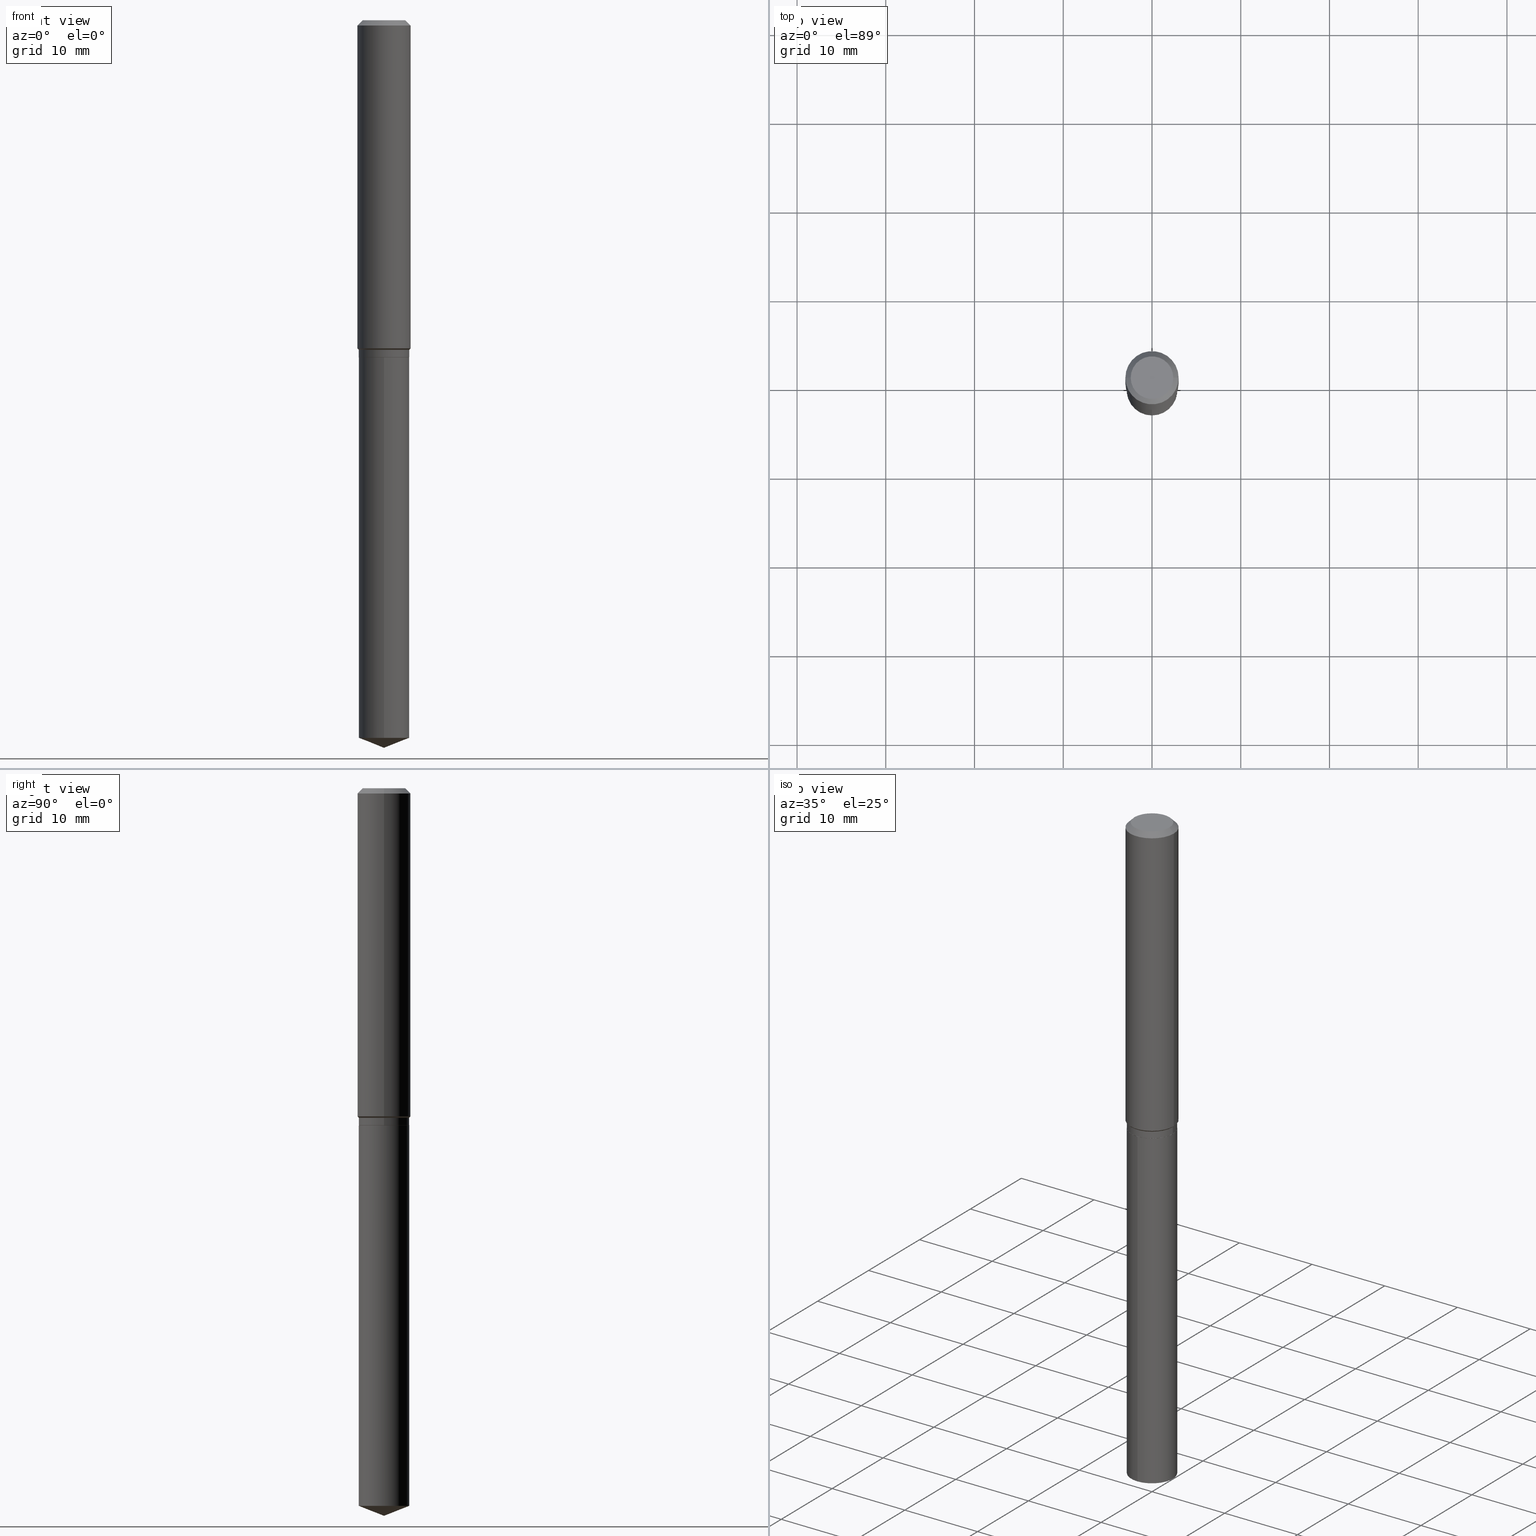
[diagram: canonical four-view strip — front | top / right | iso, engineering-drawing reading convention]
A machine part, canonical four-view strip (front | top / right | iso — engineering-drawing reading convention). The complete STEP part file that produces these views, byte-faithful:
ISO-10303-21;
HEADER;
FILE_DESCRIPTION (( 'STEP AP203' ),
    '1' );
FILE_NAME ('66530.STEP',
    '2024-04-25T00:23:13',
    ( '' ),
    ( '' ),
    'SwSTEP 2.0',
    'SolidWorks 2023',
    '' );
FILE_SCHEMA (( 'CONFIG_CONTROL_DESIGN' ));
ENDSEC;

DATA;
#1 = ORIENTED_EDGE ( 'NONE', *, *, #245, .T. ) ;
#2 = EDGE_CURVE ( 'NONE', #341, #427, #469, .T. ) ;
#3 = ORIENTED_EDGE ( 'NONE', *, *, #245, .F. ) ;
#4 = ORIENTED_EDGE ( 'NONE', *, *, #311, .F. ) ;
#5 = DIRECTION ( 'NONE',  ( -2.445468806185136597E-29, 3.491481338843145583E-15, 1.000000000000000000 ) ) ;
#6 = COORDINATED_UNIVERSAL_TIME_OFFSET ( 5, 0, .BEHIND. ) ;
#7 = CARTESIAN_POINT ( 'NONE',  ( 3.560847128686177889E-29, -5.083945977489504641E-15, -1.456100000000000172 ) ) ;
#8 = AXIS2_PLACEMENT_3D ( 'NONE', #474, #138, #289 ) ;
#9 = CONICAL_SURFACE ( 'NONE', #60, 0.1116999999999999937, 0.7853981633975507526 ) ;
#10 = DIRECTION ( 'NONE',  ( -2.445468806185136597E-29, 3.491481338843145583E-15, 1.000000000000000000 ) ) ;
#11 = VERTEX_POINT ( 'NONE', #355 ) ;
#12 = PERSON_AND_ORGANIZATION ( #20, #211 ) ;
#13 = EDGE_LOOP ( 'NONE', ( #270, #275, #236, #41 ) ) ;
#14 = DATE_TIME_ROLE ( 'creation_date' ) ;
#15 = VERTEX_POINT ( 'NONE', #21 ) ;
#16 = ORIENTED_EDGE ( 'NONE', *, *, #107, .T. ) ;
#17 = CLOSED_SHELL ( 'NONE', ( #329, #232, #120, #444, #420, #176, #447, #345, #227, #19, #364, #414 ) ) ;
#18 = AXIS2_PLACEMENT_3D ( 'NONE', #39, #37, #187 ) ;
#19 = ADVANCED_FACE ( 'NONE', ( #470 ), #398, .F. ) ;
#20 = PERSON ( 'UNSPECIFIED', 'UNSPECIFIED', 'UNSPECIFIED', ('UNSPECIFIED'), ('UNSPECIFIED'), ('UNSPECIFIED') ) ;
#21 = CARTESIAN_POINT ( 'NONE',  ( 0.1181000000000001632, -5.908633869724253693E-15, -1.456100000000000172 ) ) ;
#22 =( NAMED_UNIT ( * ) SI_UNIT ( $, .STERADIAN. ) SOLID_ANGLE_UNIT ( ) );
#23 = CARTESIAN_POINT ( 'NONE',  ( -0.1122000000000000081, -4.307316767865847002E-15, -1.462000000000000188 ) ) ;
#24 = CARTESIAN_POINT ( 'NONE',  ( 7.785841617379532030E-29, -1.111626107828459545E-14, -3.183803244636004059 ) ) ;
#25 = CIRCLE ( 'NONE', #387, 0.1116999999999999937 ) ;
#26 =( CONVERSION_BASED_UNIT ( 'INCH', #406 ) LENGTH_UNIT ( ) NAMED_UNIT ( #454 ) );
#27 = CIRCLE ( 'NONE', #476, 0.1180999999999999966 ) ;
#28 = EDGE_CURVE ( 'NONE', #155, #48, #42, .T. ) ;
#29 = LINE ( 'NONE', #417, #397 ) ;
#30 = APPLICATION_PROTOCOL_DEFINITION ( 'international standard', 'config_control_design', 1994, #68 ) ;
#31 = DIRECTION ( 'NONE',  ( 1.000000000000000000, -6.982962677686266711E-15, 4.876176775795935793E-29 ) ) ;
#32 = CARTESIAN_POINT ( 'NONE',  ( 5.776197320209327532E-31, -8.246878922347559293E-17, -0.02362000000000014088 ) ) ;
#33 = PERSON_AND_ORGANIZATION ( #20, #211 ) ;
#34 = EDGE_CURVE ( 'NONE', #252, #44, #487, .T. ) ;
#35 = AXIS2_PLACEMENT_3D ( 'NONE', #179, #336, #146 ) ;
#36 = CONICAL_SURFACE ( 'NONE', #150, 0.1122000000000000081, 0.7853981633974569387 ) ;
#37 = DIRECTION ( 'NONE',  ( -2.445439244954803263E-29, 3.491523672207503504E-15, 1.000000000000000000 ) ) ;
#38 = APPROVAL ( #240, 'UNSPECIFIED' ) ;
#39 = CARTESIAN_POINT ( 'NONE',  ( -8.838321353069555042E-28, 1.261909868020604563E-13, 36.14207874015747990 ) ) ;
#40 = EDGE_CURVE ( 'NONE', #11, #239, #284, .T. ) ;
#41 = ORIENTED_EDGE ( 'NONE', *, *, #117, .F. ) ;
#42 = CIRCLE ( 'NONE', #482, 0.09447999999999998066 ) ;
#43 = AXIS2_PLACEMENT_3D ( 'NONE', #57, #358, #466 ) ;
#44 = VERTEX_POINT ( 'NONE', #328 ) ;
#45 = ADVANCED_FACE ( 'NONE', ( #63 ), #251, .T. ) ;
#46 = DIRECTION ( 'NONE',  ( -2.445468806185136597E-29, 3.491481338843145583E-15, 1.000000000000000000 ) ) ;
#47 = ORIENTED_EDGE ( 'NONE', *, *, #369, .F. ) ;
#48 = VERTEX_POINT ( 'NONE', #56 ) ;
#49 = ORIENTED_EDGE ( 'NONE', *, *, #228, .T. ) ;
#50 = ADVANCED_FACE ( 'NONE', ( #132 ), #285, .T. ) ;
#51 = VERTEX_POINT ( 'NONE', #325 ) ;
#52 = CALENDAR_DATE ( 2024, 24, 4 ) ;
#53 = CARTESIAN_POINT ( 'NONE',  ( 0.000000000000000000, 0.000000000000000000, 0.000000000000000000 ) ) ;
#54 = VERTEX_POINT ( 'NONE', #250 ) ;
#55 = CARTESIAN_POINT ( 'NONE',  ( 3.657687693411109493E-29, -5.222208638507693246E-15, -1.495700000000000029 ) ) ;
#56 = CARTESIAN_POINT ( 'NONE',  ( 0.09447999999999998066, -7.704367267948738690E-16, -1.928573779296752193E-17 ) ) ;
#57 = CARTESIAN_POINT ( 'NONE',  ( 3.656464959008016692E-29, -5.220462897838271742E-15, -1.495200000000000307 ) ) ;
#58 = VECTOR ( 'NONE', #100, 39.37007874015748143 ) ;
#59 = EDGE_CURVE ( 'NONE', #128, #44, #395, .T. ) ;
#60 = AXIS2_PLACEMENT_3D ( 'NONE', #55, #461, #313 ) ;
#61 = DESIGN_CONTEXT ( 'detailed design', #68, 'design' ) ;
#62 = DIRECTION ( 'NONE',  ( -2.445439244954803263E-29, 3.491523672207503504E-15, 1.000000000000000000 ) ) ;
#63 = FACE_OUTER_BOUND ( 'NONE', #166, .T. ) ;
#64 = UNCERTAINTY_MEASURE_WITH_UNIT (LENGTH_MEASURE( 1.000000000000000082E-05 ), #26, 'distance_accuracy_value', 'NONE');
#65 = EDGE_LOOP ( 'NONE', ( #1, #84, #79, #316 ) ) ;
#66 = CARTESIAN_POINT ( 'NONE',  ( 5.776197320209327532E-31, -8.246878922347559293E-17, -0.02362000000000014088 ) ) ;
#67 = CYLINDRICAL_SURFACE ( 'NONE', #307, 0.1181000000000000799 ) ;
#68 = APPLICATION_CONTEXT ( 'configuration controlled 3d designs of mechanical parts and assemblies' ) ;
#69 = AXIS2_PLACEMENT_3D ( 'NONE', #437, #174, #473 ) ;
#70 = APPROVAL_PERSON_ORGANIZATION ( #446, #407, #73 ) ;
#71 = EDGE_CURVE ( 'NONE', #128, #113, #288, .T. ) ;
#72 = LINE ( 'NONE', #294, #98 ) ;
#73 = APPROVAL_ROLE ( '' ) ;
#74 = DIRECTION ( 'NONE',  ( 1.000000000000000000, -6.982962677686262766E-15, 0.000000000000000000 ) ) ;
#75 = DATE_AND_TIME ( #409, #274 ) ;
#76 = DIRECTION ( 'NONE',  ( -0.7071067811865459074, 2.468850131082240100E-15, -0.7071067811865491270 ) ) ;
#77 = CARTESIAN_POINT ( 'NONE',  ( 0.1122000000000000081, -7.834884124363992007E-16, 5.471070342443040245E-30 ) ) ;
#78 = ORIENTED_EDGE ( 'NONE', *, *, #489, .T. ) ;
#79 = ORIENTED_EDGE ( 'NONE', *, *, #159, .F. ) ;
#80 = AXIS2_PLACEMENT_3D ( 'NONE', #244, #206, #277 ) ;
#81 = VERTEX_POINT ( 'NONE', #213 ) ;
#82 = ORIENTED_EDGE ( 'NONE', *, *, #2, .F. ) ;
#83 = EDGE_CURVE ( 'NONE', #341, #164, #361, .T. ) ;
#84 = ORIENTED_EDGE ( 'NONE', *, *, #311, .T. ) ;
#85 = CALENDAR_DATE ( 2024, 24, 4 ) ;
#86 = ORIENTED_EDGE ( 'NONE', *, *, #484, .T. ) ;
#87 = CONICAL_SURFACE ( 'NONE', #18, 99.94676754583997536, 1.195550537616119513 ) ;
#88 = ORIENTED_EDGE ( 'NONE', *, *, #107, .F. ) ;
#89 = FACE_OUTER_BOUND ( 'NONE', #112, .T. ) ;
#90 = EDGE_CURVE ( 'NONE', #48, #155, #115, .T. ) ;
#91 = DIRECTION ( 'NONE',  ( -2.445439244954803263E-29, 3.491523672207503504E-15, 1.000000000000000000 ) ) ;
#92 = FACE_OUTER_BOUND ( 'NONE', #156, .T. ) ;
#93 = DIRECTION ( 'NONE',  ( 1.000000000000000000, -6.982962677686266711E-15, 0.000000000000000000 ) ) ;
#94 = EDGE_CURVE ( 'NONE', #15, #352, #177, .T. ) ;
#95 = DIRECTION ( 'NONE',  ( 1.000000000000000000, -6.982962677686266711E-15, 0.000000000000000000 ) ) ;
#96 = EDGE_LOOP ( 'NONE', ( #301, #86, #425, #118 ) ) ;
#97 = DIRECTION ( 'NONE',  ( -6.982962677686265133E-15, -1.000000000000000000, 2.434802133390608632E-15 ) ) ;
#98 = VECTOR ( 'NONE', #370, 39.37007874015748143 ) ;
#99 = AXIS2_PLACEMENT_3D ( 'NONE', #379, #46, #306 ) ;
#100 = DIRECTION ( 'NONE',  ( -2.445439244954803543E-29, 3.491523672207503899E-15, 1.000000000000000000 ) ) ;
#101 = CARTESIAN_POINT ( 'NONE',  ( 0.1181000000000000799, -8.246878922347486570E-16, 5.758764772215004644E-30 ) ) ;
#102 = LINE ( 'NONE', #268, #116 ) ;
#103 = DIRECTION ( 'NONE',  ( 1.000000000000000000, -6.982962677686266711E-15, 0.000000000000000000 ) ) ;
#104 = DIRECTION ( 'NONE',  ( -2.445439244954803543E-29, 3.491523672207503899E-15, 1.000000000000000000 ) ) ;
#105 = CARTESIAN_POINT ( 'NONE',  ( 0.1180999999999999966, -8.926936027602933910E-16, -0.02362000000000014088 ) ) ;
#106 = AXIS2_PLACEMENT_3D ( 'NONE', #147, #295, #368 ) ;
#107 = EDGE_CURVE ( 'NONE', #319, #113, #255, .T. ) ;
#108 = DIRECTION ( 'NONE',  ( -1.000000000000000000, 6.982962677686266711E-15, 0.000000000000000000 ) ) ;
#109 = DIRECTION ( 'NONE',  ( 6.982962677686265922E-15, 1.000000000000000000, -3.491523672207503899E-15 ) ) ;
#110 = CARTESIAN_POINT ( 'NONE',  ( 3.560847128686177889E-29, -5.083945977489504641E-15, -1.456100000000000172 ) ) ;
#111 = AXIS2_PLACEMENT_3D ( 'NONE', #410, #331, #108 ) ;
#112 = EDGE_LOOP ( 'NONE', ( #416, #463, #3, #382 ) ) ;
#113 = VERTEX_POINT ( 'NONE', #280 ) ;
#114 = CARTESIAN_POINT ( 'NONE',  ( 3.656464959008016692E-29, -5.220462897838271742E-15, -1.495200000000000307 ) ) ;
#115 = CIRCLE ( 'NONE', #8, 0.09447999999999998066 ) ;
#116 = VECTOR ( 'NONE', #104, 39.37007874015748143 ) ;
#117 = EDGE_CURVE ( 'NONE', #155, #54, #140, .T. ) ;
#118 = ORIENTED_EDGE ( 'NONE', *, *, #34, .F. ) ;
#119 = DATE_AND_TIME ( #161, #217 ) ;
#120 = ADVANCED_FACE ( 'NONE', ( #259 ), #67, .T. ) ;
#121 = ORIENTED_EDGE ( 'NONE', *, *, #135, .F. ) ;
#122 = SHAPE_DEFINITION_REPRESENTATION ( #172, #383 ) ;
#123 = EDGE_LOOP ( 'NONE', ( #173, #342 ) ) ;
#124 = DIRECTION ( 'NONE',  ( -2.445468806185136877E-29, 3.491481338843145188E-15, 1.000000000000000000 ) ) ;
#125 = EDGE_CURVE ( 'NONE', #44, #252, #338, .T. ) ;
#126 = DATE_AND_TIME ( #315, #199 ) ;
#127 = AXIS2_PLACEMENT_3D ( 'NONE', #32, #184, #335 ) ;
#128 = VERTEX_POINT ( 'NONE', #186 ) ;
#129 = CARTESIAN_POINT ( 'NONE',  ( 0.1122000000000000081, -5.888034129825078373E-15, -1.462000000000000188 ) ) ;
#130 = DIRECTION ( 'NONE',  ( -2.445439244954803263E-29, 3.491523672207503504E-15, 1.000000000000000000 ) ) ;
#131 = EDGE_CURVE ( 'NONE', #427, #341, #475, .T. ) ;
#132 = FACE_OUTER_BOUND ( 'NONE', #468, .T. ) ;
#133 = ORIENTED_EDGE ( 'NONE', *, *, #203, .T. ) ;
#134 = MANIFOLD_SOLID_BREP ( 'Body-Move/Copy2[1]', #272 ) ;
#135 = EDGE_CURVE ( 'NONE', #81, #51, #72, .T. ) ;
#136 = AXIS2_PLACEMENT_3D ( 'NONE', #221, #442, #31 ) ;
#137 = CONICAL_SURFACE ( 'NONE', #99, 0.1116999999999999937, 0.7853981633975507526 ) ;
#138 = DIRECTION ( 'NONE',  ( -2.445468806185136597E-29, 3.491481338843145583E-15, 1.000000000000000000 ) ) ;
#139 = PRODUCT_DEFINITION ( 'UNKNOWN', '', #318, #61 ) ;
#140 = LINE ( 'NONE', #141, #169 ) ;
#141 = CARTESIAN_POINT ( 'NONE',  ( -0.1180999999999999966, 7.422191030112725094E-16, -0.02362000000000014088 ) ) ;
#142 = EDGE_CURVE ( 'NONE', #48, #352, #292, .T. ) ;
#143 = AXIS2_PLACEMENT_3D ( 'NONE', #436, #91, #247 ) ;
#144 = CARTESIAN_POINT ( 'NONE',  ( -0.09447999999999998066, 7.009847083995354710E-16, -1.928573779297727792E-17 ) ) ;
#145 = CIRCLE ( 'NONE', #459, 0.1122000000000000081 ) ;
#146 = DIRECTION ( 'NONE',  ( 1.000000000000000000, -6.982962677686266711E-15, 0.000000000000000000 ) ) ;
#147 = CARTESIAN_POINT ( 'NONE',  ( 0.000000000000000000, 0.000000000000000000, 0.000000000000000000 ) ) ;
#148 = FACE_OUTER_BOUND ( 'NONE', #231, .T. ) ;
#149 = VECTOR ( 'NONE', #175, 39.37007874015748854 ) ;
#150 = AXIS2_PLACEMENT_3D ( 'NONE', #248, #393, #195 ) ;
#151 = DIRECTION ( 'NONE',  ( 1.000000000000000000, -6.982962677686262766E-15, 0.000000000000000000 ) ) ;
#152 = MANIFOLD_SOLID_BREP ( 'Body-Move/Copy2[2]', #17 ) ;
#153 = ORIENTED_EDGE ( 'NONE', *, *, #302, .F. ) ;
#154 = EDGE_LOOP ( 'NONE', ( #4, #193, #359, #47 ) ) ;
#155 = VERTEX_POINT ( 'NONE', #144 ) ;
#156 = EDGE_LOOP ( 'NONE', ( #197, #435, #189, #456 ) ) ;
#157 = DIRECTION ( 'NONE',  ( 1.000000000000000000, -6.982962677686266711E-15, 0.000000000000000000 ) ) ;
#158 = AXIS2_PLACEMENT_3D ( 'NONE', #264, #413, #262 ) ;
#159 = EDGE_CURVE ( 'NONE', #352, #54, #411, .T. ) ;
#160 = AXIS2_PLACEMENT_3D ( 'NONE', #209, #320, #344 ) ;
#161 = CALENDAR_DATE ( 2024, 24, 4 ) ;
#162 = ORIENTED_EDGE ( 'NONE', *, *, #40, .T. ) ;
#163 = APPROVAL_DATE_TIME ( #362, #354 ) ;
#164 = VERTEX_POINT ( 'NONE', #291 ) ;
#165 = FACE_OUTER_BOUND ( 'NONE', #385, .T. ) ;
#166 = EDGE_LOOP ( 'NONE', ( #88, #233, #308 ) ) ;
#167 = APPROVAL_ROLE ( '' ) ;
#168 = DIRECTION ( 'NONE',  ( 1.000000000000000000, -6.982962677686267499E-15, 4.875432709231658792E-29 ) ) ;
#169 = VECTOR ( 'NONE', #76, 39.37007874015748143 ) ;
#170 = CIRCLE ( 'NONE', #432, 0.1181000000000001632 ) ;
#171 = CARTESIAN_POINT ( 'NONE',  ( 3.657687693411109493E-29, -5.222208638507693246E-15, -1.495700000000000029 ) ) ;
#172 = PRODUCT_DEFINITION_SHAPE ( 'NONE', 'NONE',  #139 ) ;
#173 = ORIENTED_EDGE ( 'NONE', *, *, #28, .T. ) ;
#174 = DIRECTION ( 'NONE',  ( -2.445439244954803263E-29, 3.491523672207503504E-15, 1.000000000000000000 ) ) ;
#175 = DIRECTION ( 'NONE',  ( -0.7071067811865534569, 7.493145998870374671E-15, 0.7071067811865413555 ) ) ;
#176 = ADVANCED_FACE ( 'NONE', ( #148 ), #445, .T. ) ;
#177 = LINE ( 'NONE', #101, #396 ) ;
#178 = ADVANCED_FACE ( 'NONE', ( #256 ), #481, .F. ) ;
#179 = CARTESIAN_POINT ( 'NONE',  ( 3.575275394642669920E-29, -5.104545717388679172E-15, -1.462000000000000188 ) ) ;
#180 = LINE ( 'NONE', #403, #326 ) ;
#181 = CC_DESIGN_PERSON_AND_ORGANIZATION_ASSIGNMENT ( #12, #389, ( #226 ) ) ;
#182 = FACE_OUTER_BOUND ( 'NONE', #96, .T. ) ;
#183 = VECTOR ( 'NONE', #214, 39.37007874015748143 ) ;
#184 = DIRECTION ( 'NONE',  ( 2.445468806185136597E-29, -3.491481338843145583E-15, -1.000000000000000000 ) ) ;
#185 = CIRCLE ( 'NONE', #191, 0.1116999999999999937 ) ;
#186 = CARTESIAN_POINT ( 'NONE',  ( -7.834884124363210048E-16, -0.1122000000000110825, -3.183803244636003615 ) ) ;
#187 = DIRECTION ( 'NONE',  ( -6.982962677686265133E-15, -1.000000000000000000, 3.498627837350004222E-15 ) ) ;
#188 = CC_DESIGN_PERSON_AND_ORGANIZATION_ASSIGNMENT ( #219, #367, ( #201 ) ) ;
#189 = ORIENTED_EDGE ( 'NONE', *, *, #220, .T. ) ;
#190 = CIRCLE ( 'NONE', #43, 0.1122000000000000081 ) ;
#191 = AXIS2_PLACEMENT_3D ( 'NONE', #339, #10, #151 ) ;
#192 = EDGE_LOOP ( 'NONE', ( #153, #16, #418 ) ) ;
#193 = ORIENTED_EDGE ( 'NONE', *, *, #433, .T. ) ;
#194 = EDGE_LOOP ( 'NONE', ( #314, #304, #378, #241 ) ) ;
#195 = DIRECTION ( 'NONE',  ( 1.000000000000000000, -6.982962677686266711E-15, 0.000000000000000000 ) ) ;
#196 = APPROVAL_ROLE ( '' ) ;
#197 = ORIENTED_EDGE ( 'NONE', *, *, #83, .F. ) ;
#198 = EDGE_LOOP ( 'NONE', ( #388, #380 ) ) ;
#199 = LOCAL_TIME ( 20, 23, 13.00000000000000000, #312 ) ;
#200 = PERSON_AND_ORGANIZATION ( #20, #211 ) ;
#201 = PRODUCT ( '66530', '66530', '', ( #254 ) ) ;
#202 = PERSON_AND_ORGANIZATION_ROLE ( 'design_supplier' ) ;
#203 = EDGE_CURVE ( 'NONE', #239, #427, #366, .T. ) ;
#204 = DIRECTION ( 'NONE',  ( -2.445468806185136597E-29, 3.491481338843145583E-15, 1.000000000000000000 ) ) ;
#205 = CARTESIAN_POINT ( 'NONE',  ( 3.657687693411109493E-29, -5.222208638507693246E-15, -1.495700000000000029 ) ) ;
#206 = DIRECTION ( 'NONE',  ( -2.445468806185136597E-29, 3.491481338843145583E-15, 1.000000000000000000 ) ) ;
#207 = ORIENTED_EDGE ( 'NONE', *, *, #332, .F. ) ;
#208 = CARTESIAN_POINT ( 'NONE',  ( 4.716267017698007905E-46, -6.733579360998555036E-32, -1.928573779297252010E-17 ) ) ;
#209 = CARTESIAN_POINT ( 'NONE',  ( 7.785841617379532030E-29, -1.111626107828459545E-14, -3.183803244636004059 ) ) ;
#210 = APPLICATION_CONTEXT ( 'configuration controlled 3d designs of mechanical parts and assemblies' ) ;
#211 = ORGANIZATION ( 'UNSPECIFIED', 'UNSPECIFIED', '' ) ;
#212 = DIRECTION ( 'NONE',  ( 2.438088387897960049E-29, -3.491481338843145188E-15, -1.000000000000000000 ) ) ;
#213 = CARTESIAN_POINT ( 'NONE',  ( -0.1116999999999999937, -4.425883175489550774E-15, -1.495700000000000029 ) ) ;
#214 = DIRECTION ( 'NONE',  ( 6.611014441532066589E-15, 0.9304175679820272382, 0.3665012267242905297 ) ) ;
#215 =( LENGTH_UNIT ( ) NAMED_UNIT ( * ) SI_UNIT ( $, .METRE. ) );
#216 = AXIS2_PLACEMENT_3D ( 'NONE', #392, #212, #441 ) ;
#217 = LOCAL_TIME ( 20, 23, 13.00000000000000000, #6 ) ;
#218 = CARTESIAN_POINT ( 'NONE',  ( 0.000000000000000000, 0.000000000000000000, 0.000000000000000000 ) ) ;
#219 = PERSON_AND_ORGANIZATION ( #20, #211 ) ;
#220 = EDGE_CURVE ( 'NONE', #427, #15, #180, .T. ) ;
#221 = CARTESIAN_POINT ( 'NONE',  ( 0.000000000000000000, 0.000000000000000000, 0.000000000000000000 ) ) ;
#222 = COORDINATED_UNIVERSAL_TIME_OFFSET ( 5, 0, .BEHIND. ) ;
#223 = FACE_OUTER_BOUND ( 'NONE', #13, .T. ) ;
#224 = APPROVAL_DATE_TIME ( #75, #407 ) ;
#225 = DIRECTION ( 'NONE',  ( -2.445468806185136597E-29, 3.491481338843145583E-15, 1.000000000000000000 ) ) ;
#226 = SECURITY_CLASSIFICATION ( '', '', #249 ) ;
#227 = ADVANCED_FACE ( 'NONE', ( #485 ), #242, .T. ) ;
#228 = EDGE_CURVE ( 'NONE', #81, #11, #25, .T. ) ;
#229 = CARTESIAN_POINT ( 'NONE',  ( -0.1181000000000000799, 8.391509709326788873E-16, -5.809262341591047988E-30 ) ) ;
#230 = ORIENTED_EDGE ( 'NONE', *, *, #438, .T. ) ;
#231 = EDGE_LOOP ( 'NONE', ( #267, #230, #133, #82 ) ) ;
#232 = ADVANCED_FACE ( 'NONE', ( #223 ), #298, .T. ) ;
#233 = ORIENTED_EDGE ( 'NONE', *, *, #302, .T. ) ;
#234 = AXIS2_PLACEMENT_3D ( 'NONE', #53, #394, #428 ) ;
#235 = PRODUCT_RELATED_PRODUCT_CATEGORY ( 'detail', '', ( #201 ) ) ;
#236 = ORIENTED_EDGE ( 'NONE', *, *, #159, .T. ) ;
#237 = COORDINATED_UNIVERSAL_TIME_OFFSET ( 5, 0, .BEHIND. ) ;
#238 = CARTESIAN_POINT ( 'NONE',  ( -0.1122000000000000081, -4.365275358090643287E-15, -1.462000000000000188 ) ) ;
#239 = VERTEX_POINT ( 'NONE', #451 ) ;
#240 = APPROVAL_STATUS ( 'not_yet_approved' ) ;
#241 = ORIENTED_EDGE ( 'NONE', *, *, #369, .T. ) ;
#242 = CONICAL_SURFACE ( 'NONE', #111, 0.1180999999999999966, 0.7853981633974460586 ) ;
#243 = CARTESIAN_POINT ( 'NONE',  ( 3.575275394642669920E-29, -5.104545717388679172E-15, -1.462000000000000188 ) ) ;
#244 = CARTESIAN_POINT ( 'NONE',  ( 3.575275394642669920E-29, -5.104545717388679172E-15, -1.462000000000000188 ) ) ;
#245 = EDGE_CURVE ( 'NONE', #15, #164, #404, .T. ) ;
#246 = DIRECTION ( 'NONE',  ( 1.000000000000000000, -6.982962677686263555E-15, 0.000000000000000000 ) ) ;
#247 = DIRECTION ( 'NONE',  ( -6.982962677686265133E-15, -1.000000000000000000, 3.498627837350004222E-15 ) ) ;
#248 = CARTESIAN_POINT ( 'NONE',  ( 3.575275394642669920E-29, -5.104545717388679172E-15, -1.462000000000000188 ) ) ;
#249 = SECURITY_CLASSIFICATION_LEVEL ( 'unclassified' ) ;
#250 = CARTESIAN_POINT ( 'NONE',  ( -0.1180999999999999966, -1.744056412423810669E-15, -0.02362000000000014088 ) ) ;
#251 = CONICAL_SURFACE ( 'NONE', #143, 99.94676754583997536, 1.195550537616119513 ) ;
#252 = VERTEX_POINT ( 'NONE', #373 ) ;
#253 = APPROVAL_PERSON_ORGANIZATION ( #305, #354, #167 ) ;
#254 = MECHANICAL_CONTEXT ( 'NONE', #210, 'mechanical' ) ;
#255 = LINE ( 'NONE', #400, #183 ) ;
#256 = FACE_OUTER_BOUND ( 'NONE', #198, .T. ) ;
#257 = CARTESIAN_POINT ( 'NONE',  ( 3.657687693411109493E-29, -5.222208638507693246E-15, -1.495700000000000029 ) ) ;
#258 = VECTOR ( 'NONE', #422, 39.37007874015748143 ) ;
#259 = FACE_OUTER_BOUND ( 'NONE', #65, .T. ) ;
#260 = APPROVAL_STATUS ( 'not_yet_approved' ) ;
#261 = DIRECTION ( 'NONE',  ( 0.7071067811865534569, -2.468850131082320564E-15, 0.7071067811865413555 ) ) ;
#262 = DIRECTION ( 'NONE',  ( -6.982962677686265133E-15, -1.000000000000000000, 2.434802133390608632E-15 ) ) ;
#263 = VECTOR ( 'NONE', #293, 39.37007874015748143 ) ;
#264 = CARTESIAN_POINT ( 'NONE',  ( 3.657687693411109493E-29, -5.222208638507693246E-15, -1.495700000000000029 ) ) ;
#265 = CC_DESIGN_SECURITY_CLASSIFICATION ( #226, ( #318 ) ) ;
#266 = DIRECTION ( 'NONE',  ( -6.497071151882120625E-15, -0.9304175679820246847, 0.3665012267242971356 ) ) ;
#267 = ORIENTED_EDGE ( 'NONE', *, *, #337, .F. ) ;
#268 = CARTESIAN_POINT ( 'NONE',  ( 7.972289495228688520E-16, 0.1121999999999947761, -1.495700000000000474 ) ) ;
#269 = CARTESIAN_POINT ( 'NONE',  ( 7.893877882714105737E-29, -1.127063841388582228E-14, -3.228000000000000203 ) ) ;
#270 = ORIENTED_EDGE ( 'NONE', *, *, #90, .F. ) ;
#271 = CC_DESIGN_PERSON_AND_ORGANIZATION_ASSIGNMENT ( #384, #202, ( #318 ) ) ;
#272 = CLOSED_SHELL ( 'NONE', ( #50, #281, #45, #381, #178 ) ) ;
#273 = EDGE_LOOP ( 'NONE', ( #276, #460, #402, #391 ) ) ;
#274 = LOCAL_TIME ( 20, 23, 13.00000000000000000, #222 ) ;
#275 = ORIENTED_EDGE ( 'NONE', *, *, #142, .T. ) ;
#276 = ORIENTED_EDGE ( 'NONE', *, *, #332, .T. ) ;
#277 = DIRECTION ( 'NONE',  ( 1.000000000000000000, -6.982962677686266711E-15, 0.000000000000000000 ) ) ;
#278 = COORDINATED_UNIVERSAL_TIME_OFFSET ( 5, 0, .BEHIND. ) ;
#279 = ORIENTED_EDGE ( 'NONE', *, *, #203, .F. ) ;
#280 = CARTESIAN_POINT ( 'NONE',  ( 7.972289495229100700E-16, 0.1121999999999888642, -3.183803244636004504 ) ) ;
#281 = ADVANCED_FACE ( 'NONE', ( #477 ), #87, .T. ) ;
#282 = CC_DESIGN_APPROVAL ( #38, ( #226 ) ) ;
#283 = DIRECTION ( 'NONE',  ( -2.445468806185136597E-29, 3.491481338843145583E-15, 1.000000000000000000 ) ) ;
#284 = LINE ( 'NONE', #287, #363 ) ;
#285 = CYLINDRICAL_SURFACE ( 'NONE', #69, 0.1122000000000000081 ) ;
#286 = FACE_OUTER_BOUND ( 'NONE', #490, .T. ) ;
#287 = CARTESIAN_POINT ( 'NONE',  ( 0.1116999999999999937, -6.002205569605248651E-15, -1.495700000000000029 ) ) ;
#288 = CIRCLE ( 'NONE', #333, 0.1122000000000000081 ) ;
#289 = DIRECTION ( 'NONE',  ( 1.000000000000000000, -6.982962677686267499E-15, 4.875432709231658792E-29 ) ) ;
#290 = CARTESIAN_POINT ( 'NONE',  ( 0.1180999999999999966, -9.071566814582237199E-16, -0.02362000000000014088 ) ) ;
#291 = CARTESIAN_POINT ( 'NONE',  ( -0.1181000000000001632, -4.244795006556825655E-15, -1.456100000000000172 ) ) ;
#292 = LINE ( 'NONE', #105, #372 ) ;
#293 = DIRECTION ( 'NONE',  ( -2.445468806185136877E-29, 3.491481338843145188E-15, 1.000000000000000000 ) ) ;
#294 = CARTESIAN_POINT ( 'NONE',  ( -0.1116999999999999937, -4.428532402663660397E-15, -1.495700000000000029 ) ) ;
#295 = DIRECTION ( 'NONE',  ( -2.445468806185136597E-29, 3.491481338843145583E-15, 1.000000000000000000 ) ) ;
#296 = CC_DESIGN_PERSON_AND_ORGANIZATION_ASSIGNMENT ( #200, #349, ( #318 ) ) ;
#297 = CARTESIAN_POINT ( 'NONE',  ( 3.657687693411109493E-29, -5.222208638507693246E-15, -1.495700000000000029 ) ) ;
#298 = CONICAL_SURFACE ( 'NONE', #127, 0.1180999999999999966, 0.7853981633974460586 ) ;
#299 = AXIS2_PLACEMENT_3D ( 'NONE', #257, #415, #324 ) ;
#300 = LINE ( 'NONE', #455, #258 ) ;
#301 = ORIENTED_EDGE ( 'NONE', *, *, #353, .F. ) ;
#302 = EDGE_CURVE ( 'NONE', #319, #128, #29, .T. ) ;
#303 = FACE_OUTER_BOUND ( 'NONE', #273, .T. ) ;
#304 = ORIENTED_EDGE ( 'NONE', *, *, #28, .F. ) ;
#305 = PERSON_AND_ORGANIZATION ( #20, #211 ) ;
#306 = DIRECTION ( 'NONE',  ( 1.000000000000000000, -6.982962677686262766E-15, 0.000000000000000000 ) ) ;
#307 = AXIS2_PLACEMENT_3D ( 'NONE', #218, #225, #405 ) ;
#308 = ORIENTED_EDGE ( 'NONE', *, *, #484, .F. ) ;
#309 = CC_DESIGN_APPROVAL ( #354, ( #318 ) ) ;
#310 = ORIENTED_EDGE ( 'NONE', *, *, #71, .T. ) ;
#311 = EDGE_CURVE ( 'NONE', #164, #54, #486, .T. ) ;
#312 = COORDINATED_UNIVERSAL_TIME_OFFSET ( 5, 0, .BEHIND. ) ;
#313 = DIRECTION ( 'NONE',  ( 1.000000000000000000, -6.982962677686262766E-15, 0.000000000000000000 ) ) ;
#314 = ORIENTED_EDGE ( 'NONE', *, *, #142, .F. ) ;
#315 = CALENDAR_DATE ( 2024, 24, 4 ) ;
#316 = ORIENTED_EDGE ( 'NONE', *, *, #94, .F. ) ;
#317 = ORIENTED_EDGE ( 'NONE', *, *, #125, .F. ) ;
#318 = PRODUCT_DEFINITION_FORMATION_WITH_SPECIFIED_SOURCE ( 'ANY', '', #201, .NOT_KNOWN. ) ;
#319 = VERTEX_POINT ( 'NONE', #269 ) ;
#320 = DIRECTION ( 'NONE',  ( -2.445439244954803263E-29, 3.491523672207503504E-15, 1.000000000000000000 ) ) ;
#321 = CC_DESIGN_DATE_AND_TIME_ASSIGNMENT ( #467, #351, ( #226 ) ) ;
#322 = DIRECTION ( 'NONE',  ( -2.445468806185136597E-29, 3.491481338843145583E-15, 1.000000000000000000 ) ) ;
#323 = CARTESIAN_POINT ( 'NONE',  ( 0.000000000000000000, 0.000000000000000000, 0.000000000000000000 ) ) ;
#324 = DIRECTION ( 'NONE',  ( 1.000000000000000000, -6.982962677686265922E-15, 4.876176775795935793E-29 ) ) ;
#325 = CARTESIAN_POINT ( 'NONE',  ( -0.1122000000000000081, -4.365275358090643287E-15, -1.495200000000000307 ) ) ;
#326 = VECTOR ( 'NONE', #261, 39.37007874015748854 ) ;
#327 = AXIS2_PLACEMENT_3D ( 'NONE', #205, #401, #97 ) ;
#328 = CARTESIAN_POINT ( 'NONE',  ( -7.834884124363625186E-16, -0.1122000000000052261, -1.495699999999999807 ) ) ;
#329 = ADVANCED_FACE ( 'NONE', ( #303 ), #137, .T. ) ;
#330 = DIRECTION ( 'NONE',  ( 2.445439244954802703E-29, -3.491523672207503899E-15, -1.000000000000000000 ) ) ;
#331 = DIRECTION ( 'NONE',  ( 2.445468806185136597E-29, -3.491481338843145583E-15, -1.000000000000000000 ) ) ;
#332 = EDGE_CURVE ( 'NONE', #11, #81, #185, .T. ) ;
#333 = AXIS2_PLACEMENT_3D ( 'NONE', #24, #62, #431 ) ;
#334 = CC_DESIGN_APPROVAL ( #407, ( #139 ) ) ;
#335 = DIRECTION ( 'NONE',  ( -1.000000000000000000, 6.982962677686266711E-15, 0.000000000000000000 ) ) ;
#336 = DIRECTION ( 'NONE',  ( -2.445468806185136597E-29, 3.491481338843145583E-15, 1.000000000000000000 ) ) ;
#337 = EDGE_CURVE ( 'NONE', #51, #341, #300, .T. ) ;
#338 = CIRCLE ( 'NONE', #158, 0.1122000000000000081 ) ;
#339 = CARTESIAN_POINT ( 'NONE',  ( 3.657687693411109493E-29, -5.222208638507693246E-15, -1.495700000000000029 ) ) ;
#340 = AXIS2_PLACEMENT_3D ( 'NONE', #323, #478, #399 ) ;
#341 = VERTEX_POINT ( 'NONE', #238 ) ;
#342 = ORIENTED_EDGE ( 'NONE', *, *, #90, .T. ) ;
#343 = EDGE_LOOP ( 'NONE', ( #207, #430 ) ) ;
#344 = DIRECTION ( 'NONE',  ( -6.982962677686265133E-15, -1.000000000000000000, 4.869604266781217263E-15 ) ) ;
#345 = ADVANCED_FACE ( 'NONE', ( #462 ), #429, .T. ) ;
#346 = PERSON_AND_ORGANIZATION_ROLE ( 'creator' ) ;
#347 = AXIS2_PLACEMENT_3D ( 'NONE', #479, #450, #103 ) ;
#348 = LOCAL_TIME ( 20, 23, 13.00000000000000000, #237 ) ;
#349 = PERSON_AND_ORGANIZATION_ROLE ( 'creator' ) ;
#350 = ORIENTED_EDGE ( 'NONE', *, *, #438, .F. ) ;
#351 = DATE_TIME_ROLE ( 'classification_date' ) ;
#352 = VERTEX_POINT ( 'NONE', #290 ) ;
#353 = EDGE_CURVE ( 'NONE', #113, #252, #102, .T. ) ;
#354 = APPROVAL ( #464, 'UNSPECIFIED' ) ;
#355 = CARTESIAN_POINT ( 'NONE',  ( 0.1116999999999999937, -6.002205569605248651E-15, -1.495700000000000029 ) ) ;
#356 = AXIS2_PLACEMENT_3D ( 'NONE', #243, #322, #95 ) ;
#357 = CIRCLE ( 'NONE', #160, 0.1122000000000000081 ) ;
#358 = DIRECTION ( 'NONE',  ( -2.445468806185136597E-29, 3.491481338843145583E-15, 1.000000000000000000 ) ) ;
#359 = ORIENTED_EDGE ( 'NONE', *, *, #94, .T. ) ;
#360 =( NAMED_UNIT ( * ) PLANE_ANGLE_UNIT ( ) SI_UNIT ( $, .RADIAN. ) );
#361 = LINE ( 'NONE', #23, #149 ) ;
#362 = DATE_AND_TIME ( #85, #488 ) ;
#363 = VECTOR ( 'NONE', #472, 39.37007874015748143 ) ;
#364 = ADVANCED_FACE ( 'NONE', ( #374 ), #386, .F. ) ;
#365 = VECTOR ( 'NONE', #377, 39.37007874015748143 ) ;
#366 = LINE ( 'NONE', #77, #263 ) ;
#367 = PERSON_AND_ORGANIZATION_ROLE ( 'design_owner' ) ;
#368 = DIRECTION ( 'NONE',  ( 1.000000000000000000, -6.982962677686266711E-15, 4.876176775795936353E-29 ) ) ;
#369 = EDGE_CURVE ( 'NONE', #54, #352, #27, .T. ) ;
#370 = DIRECTION ( 'NONE',  ( -0.7071067811866199593, 7.493145998870616062E-15, 0.7071067811864750752 ) ) ;
#371 = CARTESIAN_POINT ( 'NONE',  ( 3.657687693411109493E-29, -5.222208638507693246E-15, -1.495700000000000029 ) ) ;
#372 = VECTOR ( 'NONE', #449, 39.37007874015748143 ) ;
#373 = CARTESIAN_POINT ( 'NONE',  ( 7.972289495229102672E-16, 0.1121999999999947761, -1.495700000000000474 ) ) ;
#374 = FACE_OUTER_BOUND ( 'NONE', #343, .T. ) ;
#375 = CYLINDRICAL_SURFACE ( 'NONE', #327, 0.1122000000000000081 ) ;
#376 = DIRECTION ( 'NONE',  ( -2.445468806185136597E-29, 3.491481338843145583E-15, 1.000000000000000000 ) ) ;
#377 = DIRECTION ( 'NONE',  ( -2.445468806185136877E-29, 3.491481338843145188E-15, 1.000000000000000000 ) ) ;
#378 = ORIENTED_EDGE ( 'NONE', *, *, #117, .T. ) ;
#379 = CARTESIAN_POINT ( 'NONE',  ( 3.657687693411109493E-29, -5.222208638507693246E-15, -1.495700000000000029 ) ) ;
#380 = ORIENTED_EDGE ( 'NONE', *, *, #34, .T. ) ;
#381 = ADVANCED_FACE ( 'NONE', ( #182 ), #375, .T. ) ;
#382 = ORIENTED_EDGE ( 'NONE', *, *, #220, .F. ) ;
#383 = ADVANCED_BREP_SHAPE_REPRESENTATION ( '66530', ( #134, #152, #340 ), #453 ) ;
#384 = PERSON_AND_ORGANIZATION ( #20, #211 ) ;
#385 = EDGE_LOOP ( 'NONE', ( #121, #49, #162, #350 ) ) ;
#386 = PLANE ( 'NONE',  #299 ) ;
#387 = AXIS2_PLACEMENT_3D ( 'NONE', #297, #408, #74 ) ;
#388 = ORIENTED_EDGE ( 'NONE', *, *, #125, .T. ) ;
#389 = PERSON_AND_ORGANIZATION_ROLE ( 'classification_officer' ) ;
#390 = DIRECTION ( 'NONE',  ( -6.982962677686265133E-15, -1.000000000000000000, 2.434802133390608632E-15 ) ) ;
#391 = ORIENTED_EDGE ( 'NONE', *, *, #40, .F. ) ;
#392 = CARTESIAN_POINT ( 'NONE',  ( 2.358133508849003952E-46, -3.366789680499277518E-32, -9.642868896486260050E-18 ) ) ;
#393 = DIRECTION ( 'NONE',  ( -2.445468806185136597E-29, 3.491481338843145583E-15, 1.000000000000000000 ) ) ;
#394 = DIRECTION ( 'NONE',  ( -2.445468806185136597E-29, 3.491481338843145583E-15, 1.000000000000000000 ) ) ;
#395 = LINE ( 'NONE', #439, #58 ) ;
#396 = VECTOR ( 'NONE', #124, 39.37007874015748143 ) ;
#397 = VECTOR ( 'NONE', #266, 39.37007874015747433 ) ;
#398 = PLANE ( 'NONE',  #216 ) ;
#399 = DIRECTION ( 'NONE',  ( 1.000000000000000000, 0.000000000000000000, 0.000000000000000000 ) ) ;
#400 = CARTESIAN_POINT ( 'NONE',  ( 7.893967087600545185E-29, -1.127051177785968140E-14, -3.228000000000000203 ) ) ;
#401 = DIRECTION ( 'NONE',  ( -2.445439244954803263E-29, 3.491523672207503504E-15, 1.000000000000000000 ) ) ;
#402 = ORIENTED_EDGE ( 'NONE', *, *, #489, .F. ) ;
#403 = CARTESIAN_POINT ( 'NONE',  ( 0.1122000000000000081, -5.888034129825078373E-15, -1.462000000000000188 ) ) ;
#404 = CIRCLE ( 'NONE', #452, 0.1181000000000001632 ) ;
#405 = DIRECTION ( 'NONE',  ( 1.000000000000000000, -6.982962677686266711E-15, 4.876176775795936353E-29 ) ) ;
#406 = LENGTH_MEASURE_WITH_UNIT ( LENGTH_MEASURE( 0.02539999999999999897 ), #215 );
#407 = APPROVAL ( #260, 'UNSPECIFIED' ) ;
#408 = DIRECTION ( 'NONE',  ( -2.445468806185136597E-29, 3.491481338843145583E-15, 1.000000000000000000 ) ) ;
#409 = CALENDAR_DATE ( 2024, 24, 4 ) ;
#410 = CARTESIAN_POINT ( 'NONE',  ( 5.776197320209327532E-31, -8.246878922347559293E-17, -0.02362000000000014088 ) ) ;
#411 = CIRCLE ( 'NONE', #347, 0.1180999999999999966 ) ;
#412 = APPROVAL_PERSON_ORGANIZATION ( #434, #38, #196 ) ;
#413 = DIRECTION ( 'NONE',  ( -2.445439244954803263E-29, 3.491523672207503504E-15, 1.000000000000000000 ) ) ;
#414 = ADVANCED_FACE ( 'NONE', ( #165 ), #9, .T. ) ;
#415 = DIRECTION ( 'NONE',  ( -2.438088387897960049E-29, 3.491481338843145188E-15, 1.000000000000000000 ) ) ;
#416 = ORIENTED_EDGE ( 'NONE', *, *, #131, .T. ) ;
#417 = CARTESIAN_POINT ( 'NONE',  ( 7.893877882714105737E-29, -1.127063841388582228E-14, -3.228000000000000203 ) ) ;
#418 = ORIENTED_EDGE ( 'NONE', *, *, #71, .F. ) ;
#419 = DIRECTION ( 'NONE',  ( -2.445468806185136597E-29, 3.491481338843145583E-15, 1.000000000000000000 ) ) ;
#420 = ADVANCED_FACE ( 'NONE', ( #286 ), #471, .T. ) ;
#421 = AXIS2_PLACEMENT_3D ( 'NONE', #171, #130, #390 ) ;
#422 = DIRECTION ( 'NONE',  ( -2.445468806185136877E-29, 3.491481338843145188E-15, 1.000000000000000000 ) ) ;
#423 = ORIENTED_EDGE ( 'NONE', *, *, #337, .T. ) ;
#424 = CC_DESIGN_DATE_AND_TIME_ASSIGNMENT ( #119, #14, ( #139 ) ) ;
#425 = ORIENTED_EDGE ( 'NONE', *, *, #59, .T. ) ;
#426 = APPROVAL_DATE_TIME ( #126, #38 ) ;
#427 = VERTEX_POINT ( 'NONE', #129 ) ;
#428 = DIRECTION ( 'NONE',  ( 1.000000000000000000, -6.982962677686266711E-15, 4.876176775795935793E-29 ) ) ;
#429 = CYLINDRICAL_SURFACE ( 'NONE', #106, 0.1181000000000000799 ) ;
#430 = ORIENTED_EDGE ( 'NONE', *, *, #228, .F. ) ;
#431 = DIRECTION ( 'NONE',  ( -6.982962677686265133E-15, -1.000000000000000000, 4.869604266781217263E-15 ) ) ;
#432 = AXIS2_PLACEMENT_3D ( 'NONE', #7, #283, #246 ) ;
#433 = EDGE_CURVE ( 'NONE', #164, #15, #170, .T. ) ;
#434 = PERSON_AND_ORGANIZATION ( #20, #211 ) ;
#435 = ORIENTED_EDGE ( 'NONE', *, *, #2, .T. ) ;
#436 = CARTESIAN_POINT ( 'NONE',  ( -8.838321353069555042E-28, 1.261909868020604563E-13, 36.14207874015747990 ) ) ;
#437 = CARTESIAN_POINT ( 'NONE',  ( 3.657687693411109493E-29, -5.222208638507693246E-15, -1.495700000000000029 ) ) ;
#438 = EDGE_CURVE ( 'NONE', #51, #239, #190, .T. ) ;
#439 = CARTESIAN_POINT ( 'NONE',  ( -7.834884124363625186E-16, -0.1122000000000052261, -1.495699999999999807 ) ) ;
#440 = AXIS2_PLACEMENT_3D ( 'NONE', #371, #330, #109 ) ;
#441 = DIRECTION ( 'NONE',  ( -1.000000000000000000, 6.982962677686265922E-15, -4.876176775795935793E-29 ) ) ;
#442 = DIRECTION ( 'NONE',  ( -2.445468806185136597E-29, 3.491481338843145583E-15, 1.000000000000000000 ) ) ;
#443 = APPLICATION_PROTOCOL_DEFINITION ( 'international standard', 'config_control_design', 1994, #210 ) ;
#444 = ADVANCED_FACE ( 'NONE', ( #89 ), #448, .T. ) ;
#445 = CYLINDRICAL_SURFACE ( 'NONE', #136, 0.1122000000000000081 ) ;
#446 = PERSON_AND_ORGANIZATION ( #20, #211 ) ;
#447 = ADVANCED_FACE ( 'NONE', ( #92 ), #36, .T. ) ;
#448 = CONICAL_SURFACE ( 'NONE', #80, 0.1122000000000000081, 0.7853981633974569387 ) ;
#449 = DIRECTION ( 'NONE',  ( 0.7071067811865459074, -7.319954787623249734E-15, -0.7071067811865491270 ) ) ;
#450 = DIRECTION ( 'NONE',  ( -2.445468806185136597E-29, 3.491481338843145583E-15, 1.000000000000000000 ) ) ;
#451 = CARTESIAN_POINT ( 'NONE',  ( 0.1122000000000000081, -6.003951310274670943E-15, -1.495200000000000307 ) ) ;
#452 = AXIS2_PLACEMENT_3D ( 'NONE', #110, #376, #483 ) ;
#453 =( GEOMETRIC_REPRESENTATION_CONTEXT ( 3 ) GLOBAL_UNCERTAINTY_ASSIGNED_CONTEXT ( ( #64 ) ) GLOBAL_UNIT_ASSIGNED_CONTEXT ( ( #26, #360, #22 ) ) REPRESENTATION_CONTEXT ( 'NONE', 'WORKASPACE' ) );
#454 = DIMENSIONAL_EXPONENTS ( 1.000000000000000000, 0.000000000000000000, 0.000000000000000000, 0.000000000000000000, 0.000000000000000000, 0.000000000000000000, 0.000000000000000000 ) ;
#455 = CARTESIAN_POINT ( 'NONE',  ( -0.1122000000000000081, 7.972289495228324658E-16, -5.519045171266004421E-30 ) ) ;
#456 = ORIENTED_EDGE ( 'NONE', *, *, #433, .F. ) ;
#457 = ORIENTED_EDGE ( 'NONE', *, *, #59, .F. ) ;
#458 = ORIENTED_EDGE ( 'NONE', *, *, #353, .T. ) ;
#459 = AXIS2_PLACEMENT_3D ( 'NONE', #114, #5, #157 ) ;
#460 = ORIENTED_EDGE ( 'NONE', *, *, #135, .T. ) ;
#461 = DIRECTION ( 'NONE',  ( -2.445468806185136597E-29, 3.491481338843145583E-15, 1.000000000000000000 ) ) ;
#462 = FACE_OUTER_BOUND ( 'NONE', #154, .T. ) ;
#463 = ORIENTED_EDGE ( 'NONE', *, *, #83, .T. ) ;
#464 = APPROVAL_STATUS ( 'not_yet_approved' ) ;
#465 = ORIENTED_EDGE ( 'NONE', *, *, #131, .F. ) ;
#466 = DIRECTION ( 'NONE',  ( 1.000000000000000000, -6.982962677686266711E-15, 0.000000000000000000 ) ) ;
#467 = DATE_AND_TIME ( #52, #348 ) ;
#468 = EDGE_LOOP ( 'NONE', ( #310, #458, #317, #457 ) ) ;
#469 = CIRCLE ( 'NONE', #356, 0.1122000000000000081 ) ;
#470 = FACE_OUTER_BOUND ( 'NONE', #123, .T. ) ;
#471 = CYLINDRICAL_SURFACE ( 'NONE', #234, 0.1122000000000000081 ) ;
#472 = DIRECTION ( 'NONE',  ( 0.7071067811866199593, -2.468850131083015945E-15, 0.7071067811864750752 ) ) ;
#473 = DIRECTION ( 'NONE',  ( -6.982962677686265133E-15, -1.000000000000000000, 2.434802133390608632E-15 ) ) ;
#474 = CARTESIAN_POINT ( 'NONE',  ( 4.716267017698007905E-46, -6.733579360998555036E-32, -1.928573779297252010E-17 ) ) ;
#475 = CIRCLE ( 'NONE', #35, 0.1122000000000000081 ) ;
#476 = AXIS2_PLACEMENT_3D ( 'NONE', #66, #419, #93 ) ;
#477 = FACE_OUTER_BOUND ( 'NONE', #192, .T. ) ;
#478 = DIRECTION ( 'NONE',  ( 0.000000000000000000, 0.000000000000000000, 1.000000000000000000 ) ) ;
#479 = CARTESIAN_POINT ( 'NONE',  ( 5.776197320209327532E-31, -8.246878922347559293E-17, -0.02362000000000014088 ) ) ;
#480 = CC_DESIGN_PERSON_AND_ORGANIZATION_ASSIGNMENT ( #33, #346, ( #139 ) ) ;
#481 = PLANE ( 'NONE',  #440 ) ;
#482 = AXIS2_PLACEMENT_3D ( 'NONE', #208, #204, #168 ) ;
#483 = DIRECTION ( 'NONE',  ( 1.000000000000000000, -6.982962677686263555E-15, 0.000000000000000000 ) ) ;
#484 = EDGE_CURVE ( 'NONE', #113, #128, #357, .T. ) ;
#485 = FACE_OUTER_BOUND ( 'NONE', #194, .T. ) ;
#486 = LINE ( 'NONE', #229, #365 ) ;
#487 = CIRCLE ( 'NONE', #421, 0.1122000000000000081 ) ;
#488 = LOCAL_TIME ( 20, 23, 13.00000000000000000, #278 ) ;
#489 = EDGE_CURVE ( 'NONE', #239, #51, #145, .T. ) ;
#490 = EDGE_LOOP ( 'NONE', ( #78, #423, #465, #279 ) ) ;
ENDSEC;
END-ISO-10303-21;
